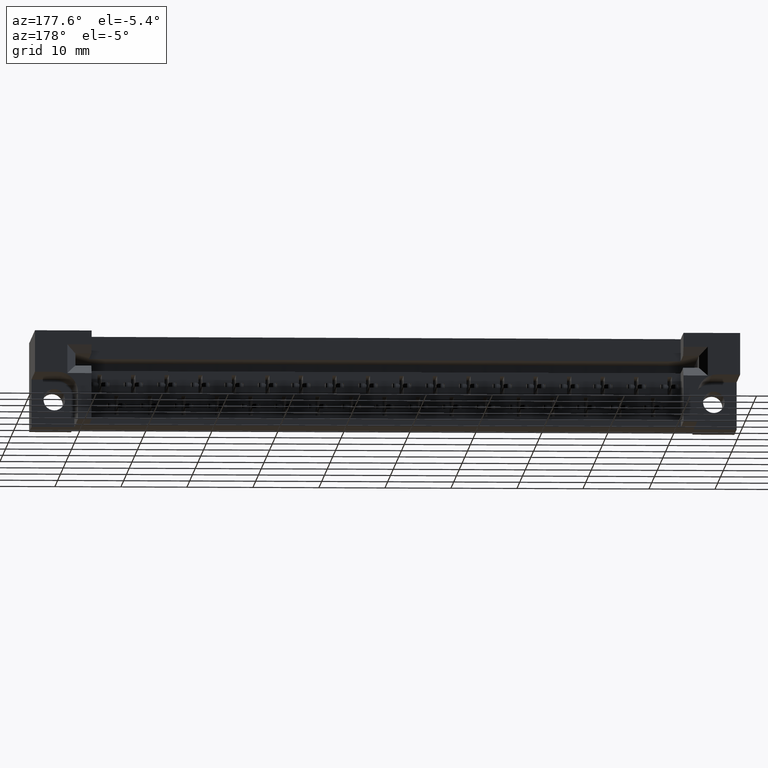
[diagram: clean part render]
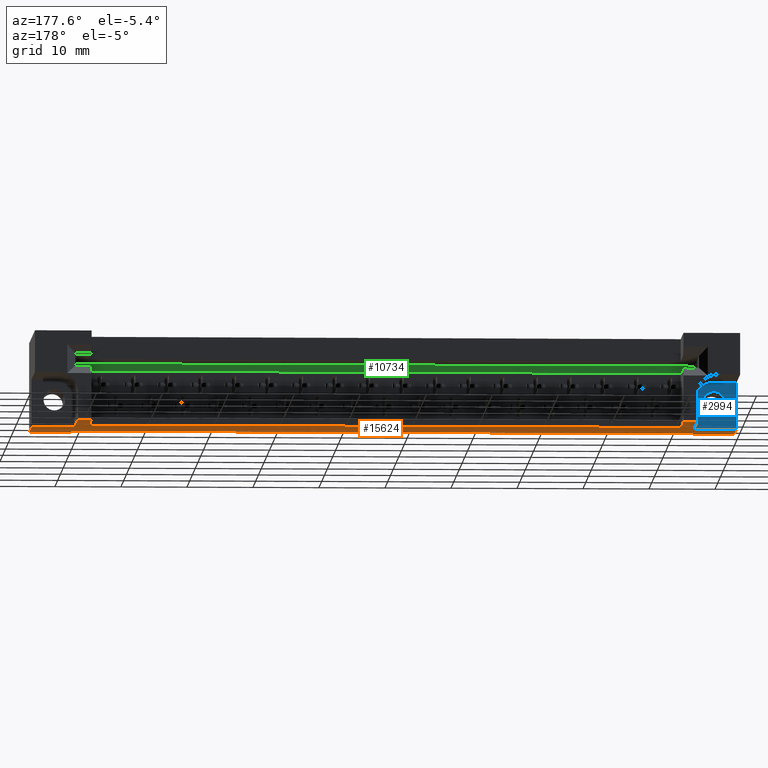
[diagram: same view with three faces highlighted in distinct colors, each labeled with its STEP entity id]
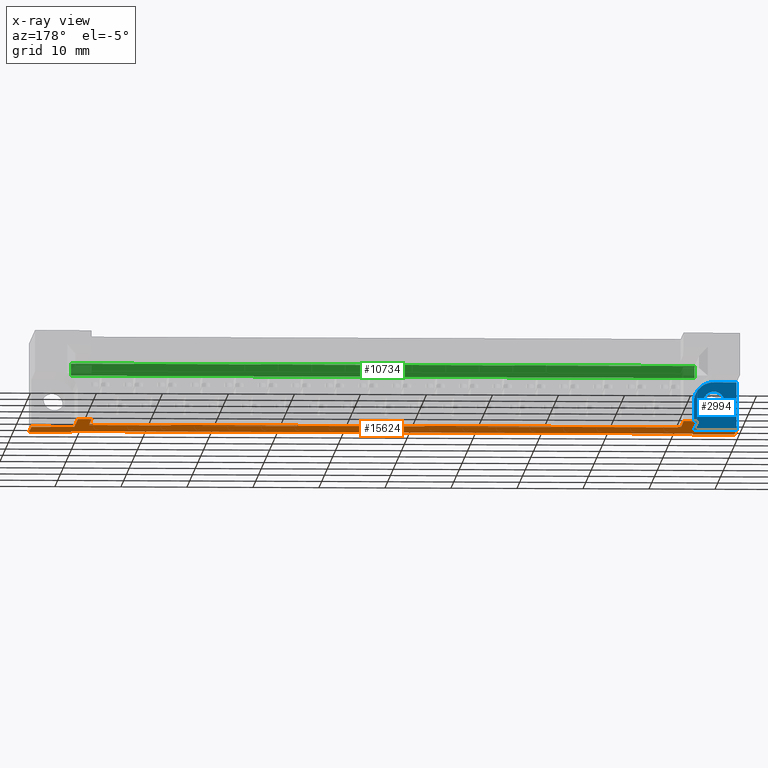
[diagram: x-ray of the same camera — body ghosted, the three highlighted faces saturated]
A machine part, auxiliary view with three faces highlighted in distinct colors.
The next image is the same camera in x-ray (body ghosted, the three faces saturated) — at least one of them is partly hidden behind the body in this view.
Their STEP definitions:

[orange] entity #15624 — the highlighted planar face has unit normal (0, 0, 1).
#139 = VERTEX_POINT ( 'NONE', #17576 ) ;
#171 = LINE ( 'NONE', #16885, #26058 ) ;
#733 = EDGE_LOOP ( 'NONE', ( #14464, #19924, #19066, #19209, #26168, #25056, #2765, #24001, #2417, #25673, #17691, #21832, #8783, #7667, #8417, #4902 ) ) ;
#1029 = CARTESIAN_POINT ( 'NONE',  ( 0.0000000000000000000, 0.0000000000000000000, -0.5310000000000000300 ) ) ;
#1157 = VERTEX_POINT ( 'NONE', #19161 ) ;
#1440 = DIRECTION ( 'NONE',  ( -0.0000000000000000000, 1.000000000000000000, -0.0000000000000000000 ) ) ;
#1476 = LINE ( 'NONE', #3424, #12326 ) ;
#1522 = EDGE_CURVE ( 'NONE', #18778, #24546, #21920, .T. ) ;
#1658 = DIRECTION ( 'NONE',  ( -1.000000000000000000, -0.0000000000000000000, -0.0000000000000000000 ) ) ;
#2145 = EDGE_CURVE ( 'NONE', #21575, #1157, #18753, .T. ) ;
#2294 = CARTESIAN_POINT ( 'NONE',  ( 3.956000000000000800, 0.01700000000000000100, -0.5309999999999999200 ) ) ;
#2417 = ORIENTED_EDGE ( 'NONE', *, *, #1522, .T. ) ;
#2753 = CARTESIAN_POINT ( 'NONE',  ( 0.0000000000000000000, 0.4530000000000000100, -0.5310000000000000300 ) ) ;
#2765 = ORIENTED_EDGE ( 'NONE', *, *, #22793, .F. ) ;
#2990 = DIRECTION ( 'NONE',  ( 0.0000000000000000000, 0.0000000000000000000, 1.000000000000000000 ) ) ;
#3088 = VERTEX_POINT ( 'NONE', #27690 ) ;
#3229 = LINE ( 'NONE', #28083, #26730 ) ;
#3370 = CARTESIAN_POINT ( 'NONE',  ( 3.950000000000000200, 0.3280000000000000100, -0.5310000000000002500 ) ) ;
#3424 = CARTESIAN_POINT ( 'NONE',  ( 4.206000000000000400, 0.4530000000000000100, -0.5310000000000000300 ) ) ;
#3526 = CARTESIAN_POINT ( 'NONE',  ( 3.867999999999999400, 0.8280000000000000700, -0.5310000000000002500 ) ) ;
#3666 = VERTEX_POINT ( 'NONE', #10863 ) ;
#4290 = LINE ( 'NONE', #3370, #28176 ) ;
#4875 = PLANE ( 'NONE',  #19361 ) ;
#4902 = ORIENTED_EDGE ( 'NONE', *, *, #25623, .F. ) ;
#5517 = LINE ( 'NONE', #8488, #13000 ) ;
#5651 = EDGE_CURVE ( 'NONE', #3088, #17822, #4290, .T. ) ;
#6121 = CARTESIAN_POINT ( 'NONE',  ( 0.0000000000000000000, 0.3280000000000000100, -0.5310000000000000300 ) ) ;
#6144 = LINE ( 'NONE', #2753, #12258 ) ;
#6257 = LINE ( 'NONE', #23178, #17880 ) ;
#6412 = DIRECTION ( 'NONE',  ( -0.0000000000000000000, -1.000000000000000000, -0.0000000000000000000 ) ) ;
#6984 = CARTESIAN_POINT ( 'NONE',  ( 0.2499999999999999200, 0.0000000000000000000, -0.5310000000000001400 ) ) ;
#7667 = ORIENTED_EDGE ( 'NONE', *, *, #14624, .T. ) ;
#8038 = VERTEX_POINT ( 'NONE', #12302 ) ;
#8417 = ORIENTED_EDGE ( 'NONE', *, *, #11137, .F. ) ;
#8488 = CARTESIAN_POINT ( 'NONE',  ( 0.0000000000000000000, 0.3280000000000000100, -0.5310000000000000300 ) ) ;
#8699 = EDGE_CURVE ( 'NONE', #15126, #10287, #27364, .T. ) ;
#8774 = VERTEX_POINT ( 'NONE', #17698 ) ;
#8783 = ORIENTED_EDGE ( 'NONE', *, *, #8699, .F. ) ;
#9033 = VECTOR ( 'NONE', #23181, 39.37007874015748100 ) ;
#9174 = VERTEX_POINT ( 'NONE', #26319 ) ;
#9884 = CARTESIAN_POINT ( 'NONE',  ( 0.3380000000000003600, 0.8280000000000000700, -0.5310000000000000300 ) ) ;
#9946 = VERTEX_POINT ( 'NONE', #6121 ) ;
#10287 = VERTEX_POINT ( 'NONE', #23777 ) ;
#10403 = EDGE_CURVE ( 'NONE', #14733, #9946, #5517, .T. ) ;
#10495 = VERTEX_POINT ( 'NONE', #22264 ) ;
#10589 = CARTESIAN_POINT ( 'NONE',  ( 0.3380000000000003600, 0.8280000000000000700, -0.5310000000000000300 ) ) ;
#10863 = CARTESIAN_POINT ( 'NONE',  ( 3.956000000000000800, 0.06200000000000000000, -0.5309999999999999200 ) ) ;
#11137 = EDGE_CURVE ( 'NONE', #8774, #8038, #6144, .T. ) ;
#11591 = VECTOR ( 'NONE', #23992, 39.37007874015748100 ) ;
#12155 = VECTOR ( 'NONE', #6412, 39.37007874015748100 ) ;
#12177 = LINE ( 'NONE', #19474, #15643 ) ;
#12258 = VECTOR ( 'NONE', #26863, 39.37007874015748100 ) ;
#12302 = CARTESIAN_POINT ( 'NONE',  ( 0.3380000000000003600, 0.4530000000000000100, -0.5310000000000000300 ) ) ;
#12326 = VECTOR ( 'NONE', #28246, 39.37007874015748100 ) ;
#12551 = CARTESIAN_POINT ( 'NONE',  ( 0.2499999999999999200, 0.01700000000000000100, -0.5310000000000001400 ) ) ;
#12728 = VECTOR ( 'NONE', #14528, 39.37007874015748100 ) ;
#12883 = DIRECTION ( 'NONE',  ( -1.000000000000000000, -0.0000000000000000000, -2.667820306312757300E-016 ) ) ;
#13000 = VECTOR ( 'NONE', #12883, 39.37007874015748100 ) ;
#13844 = EDGE_CURVE ( 'NONE', #9174, #18778, #19976, .T. ) ;
#14326 = DIRECTION ( 'NONE',  ( -1.000000000000000000, -0.0000000000000000000, -0.0000000000000000000 ) ) ;
#14464 = ORIENTED_EDGE ( 'NONE', *, *, #14486, .F. ) ;
#14486 = EDGE_CURVE ( 'NONE', #17822, #10495, #20298, .T. ) ;
#14528 = DIRECTION ( 'NONE',  ( -1.000000000000000000, -0.0000000000000000000, -6.061792885349676100E-016 ) ) ;
#14591 = DIRECTION ( 'NONE',  ( -0.0000000000000000000, -1.000000000000000000, -0.0000000000000000000 ) ) ;
#14624 = EDGE_CURVE ( 'NONE', #15126, #8038, #171, .T. ) ;
#14626 = DIRECTION ( 'NONE',  ( -0.0000000000000000000, -1.000000000000000000, -0.0000000000000000000 ) ) ;
#14733 = VERTEX_POINT ( 'NONE', #16693 ) ;
#14973 = VECTOR ( 'NONE', #21143, 39.37007874015748100 ) ;
#15126 = VERTEX_POINT ( 'NONE', #9884 ) ;
#15413 = FACE_OUTER_BOUND ( 'NONE', #733, .T. ) ;
#15624 = ADVANCED_FACE ( 'NONE', ( #15413 ), #4875, .F. ) ;
#15643 = VECTOR ( 'NONE', #23793, 39.37007874015748100 ) ;
#15673 = LINE ( 'NONE', #3526, #14973 ) ;
#16106 = DIRECTION ( 'NONE',  ( 1.000000000000000000, 0.0000000000000000000, -0.0000000000000000000 ) ) ;
#16693 = CARTESIAN_POINT ( 'NONE',  ( 0.2560000000000000100, 0.3280000000000000100, -0.5309999999999999200 ) ) ;
#16885 = CARTESIAN_POINT ( 'NONE',  ( 0.3380000000000003600, 0.8280000000000000700, -0.5310000000000000300 ) ) ;
#17074 = CARTESIAN_POINT ( 'NONE',  ( 0.0000000000000000000, 0.0000000000000000000, -0.5310000000000000300 ) ) ;
#17303 = CARTESIAN_POINT ( 'NONE',  ( 4.206000000000000400, 0.0000000000000000000, -0.5310000000000000300 ) ) ;
#17366 = EDGE_CURVE ( 'NONE', #14733, #10287, #12177, .T. ) ;
#17576 = CARTESIAN_POINT ( 'NONE',  ( 4.205999999999999500, 0.3280000000000000100, -0.5310000000000000300 ) ) ;
#17691 = ORIENTED_EDGE ( 'NONE', *, *, #10403, .F. ) ;
#17698 = CARTESIAN_POINT ( 'NONE',  ( 3.867999999999999400, 0.4530000000000000100, -0.5310000000000002500 ) ) ;
#17822 = VERTEX_POINT ( 'NONE', #18977 ) ;
#17880 = VECTOR ( 'NONE', #14591, 39.37007874015748100 ) ;
#18512 = DIRECTION ( 'NONE',  ( -1.000000000000000000, 0.0000000000000000000, -1.067128122525104300E-015 ) ) ;
#18720 = EDGE_CURVE ( 'NONE', #3666, #1157, #26181, .T. ) ;
#18753 = LINE ( 'NONE', #27857, #25953 ) ;
#18778 = VERTEX_POINT ( 'NONE', #6984 ) ;
#18977 = CARTESIAN_POINT ( 'NONE',  ( 3.950000000000000200, 0.8280000000000000700, -0.5310000000000002500 ) ) ;
#19066 = ORIENTED_EDGE ( 'NONE', *, *, #21020, .F. ) ;
#19161 = CARTESIAN_POINT ( 'NONE',  ( 3.956000000000000800, 0.0000000000000000000, -0.5309999999999999200 ) ) ;
#19209 = ORIENTED_EDGE ( 'NONE', *, *, #22998, .T. ) ;
#19361 = AXIS2_PLACEMENT_3D ( 'NONE', #20098, #2990, #16106 ) ;
#19474 = CARTESIAN_POINT ( 'NONE',  ( 0.2560000000000000100, 0.3280000000000000100, -0.5309999999999999200 ) ) ;
#19518 = VECTOR ( 'NONE', #18512, 39.37007874015748100 ) ;
#19924 = ORIENTED_EDGE ( 'NONE', *, *, #5651, .F. ) ;
#19976 = LINE ( 'NONE', #12551, #9033 ) ;
#20098 = CARTESIAN_POINT ( 'NONE',  ( 0.0000000000000000000, 0.4530000000000000100, -0.5310000000000000300 ) ) ;
#20298 = LINE ( 'NONE', #23565, #12728 ) ;
#20380 = EDGE_CURVE ( 'NONE', #9946, #24546, #6257, .T. ) ;
#21020 = EDGE_CURVE ( 'NONE', #139, #3088, #25007, .T. ) ;
#21143 = DIRECTION ( 'NONE',  ( -0.0000000000000000000, -1.000000000000000000, -0.0000000000000000000 ) ) ;
#21575 = VERTEX_POINT ( 'NONE', #17303 ) ;
#21832 = ORIENTED_EDGE ( 'NONE', *, *, #17366, .T. ) ;
#21920 = LINE ( 'NONE', #1029, #22946 ) ;
#22264 = CARTESIAN_POINT ( 'NONE',  ( 3.867999999999999400, 0.8280000000000000700, -0.5310000000000002500 ) ) ;
#22555 = CARTESIAN_POINT ( 'NONE',  ( 4.205999999999999500, 0.3280000000000000100, -0.5310000000000000300 ) ) ;
#22793 = EDGE_CURVE ( 'NONE', #9174, #3666, #3229, .T. ) ;
#22946 = VECTOR ( 'NONE', #14326, 39.37007874015748100 ) ;
#22998 = EDGE_CURVE ( 'NONE', #139, #21575, #1476, .T. ) ;
#23178 = CARTESIAN_POINT ( 'NONE',  ( 0.0000000000000000000, 0.4530000000000000100, -0.5310000000000000300 ) ) ;
#23181 = DIRECTION ( 'NONE',  ( -0.0000000000000000000, -1.000000000000000000, -0.0000000000000000000 ) ) ;
#23565 = CARTESIAN_POINT ( 'NONE',  ( 3.867999999999999400, 0.8280000000000000700, -0.5310000000000002500 ) ) ;
#23777 = CARTESIAN_POINT ( 'NONE',  ( 0.2560000000000000100, 0.8280000000000000700, -0.5309999999999999200 ) ) ;
#23793 = DIRECTION ( 'NONE',  ( -0.0000000000000000000, 1.000000000000000000, -0.0000000000000000000 ) ) ;
#23992 = DIRECTION ( 'NONE',  ( -1.000000000000000000, 0.0000000000000000000, 0.0000000000000000000 ) ) ;
#24001 = ORIENTED_EDGE ( 'NONE', *, *, #13844, .T. ) ;
#24546 = VERTEX_POINT ( 'NONE', #17074 ) ;
#25007 = LINE ( 'NONE', #22555, #19518 ) ;
#25056 = ORIENTED_EDGE ( 'NONE', *, *, #18720, .F. ) ;
#25623 = EDGE_CURVE ( 'NONE', #10495, #8774, #15673, .T. ) ;
#25673 = ORIENTED_EDGE ( 'NONE', *, *, #20380, .F. ) ;
#25953 = VECTOR ( 'NONE', #1658, 39.37007874015748100 ) ;
#26058 = VECTOR ( 'NONE', #14626, 39.37007874015748100 ) ;
#26168 = ORIENTED_EDGE ( 'NONE', *, *, #2145, .T. ) ;
#26181 = LINE ( 'NONE', #2294, #12155 ) ;
#26262 = DIRECTION ( 'NONE',  ( 1.000000000000000000, 0.0000000000000000000, 1.842854825731423800E-017 ) ) ;
#26319 = CARTESIAN_POINT ( 'NONE',  ( 0.2499999999999999200, 0.06200000000000000000, -0.5310000000000000300 ) ) ;
#26730 = VECTOR ( 'NONE', #26262, 39.37007874015748100 ) ;
#26863 = DIRECTION ( 'NONE',  ( -1.000000000000000000, -0.0000000000000000000, -0.0000000000000000000 ) ) ;
#27364 = LINE ( 'NONE', #10589, #11591 ) ;
#27690 = CARTESIAN_POINT ( 'NONE',  ( 3.950000000000000200, 0.3280000000000000100, -0.5310000000000002500 ) ) ;
#27857 = CARTESIAN_POINT ( 'NONE',  ( 0.0000000000000000000, 0.0000000000000000000, -0.5310000000000000300 ) ) ;
#28083 = CARTESIAN_POINT ( 'NONE',  ( 9.785559124633859800E-018, 0.06200000000000000000, -0.5310000000000000300 ) ) ;
#28176 = VECTOR ( 'NONE', #1440, 39.37007874015748100 ) ;
#28246 = DIRECTION ( 'NONE',  ( -0.0000000000000000000, -1.000000000000000000, -0.0000000000000000000 ) ) ;

[blue] entity #2994 — the highlighted planar face has unit normal (0, -1, 0).
#587 = VECTOR ( 'NONE', #20119, 39.37007874015748100 ) ;
#758 = FACE_BOUND ( 'NONE', #3709, .T. ) ;
#1120 = ORIENTED_EDGE ( 'NONE', *, *, #14384, .T. ) ;
#1590 = VERTEX_POINT ( 'NONE', #25383 ) ;
#1834 = EDGE_CURVE ( 'NONE', #9946, #1590, #24268, .T. ) ;
#1946 = CARTESIAN_POINT ( 'NONE',  ( 0.1360000000000000100, 0.3280000000000000100, -0.3679999999999999900 ) ) ;
#2279 = ORIENTED_EDGE ( 'NONE', *, *, #10403, .T. ) ;
#2994 = ADVANCED_FACE ( 'NONE', ( #5815, #758 ), #24844, .F. ) ;
#3709 = EDGE_LOOP ( 'NONE', ( #27988, #16324 ) ) ;
#5517 = LINE ( 'NONE', #8488, #13000 ) ;
#5748 = DIRECTION ( 'NONE',  ( -2.094975455264006000E-016, -0.0000000000000000000, -1.000000000000000000 ) ) ;
#5815 = FACE_OUTER_BOUND ( 'NONE', #15784, .T. ) ;
#6121 = CARTESIAN_POINT ( 'NONE',  ( 0.0000000000000000000, 0.3280000000000000100, -0.5310000000000000300 ) ) ;
#7139 = VERTEX_POINT ( 'NONE', #10979 ) ;
#7345 = CARTESIAN_POINT ( 'NONE',  ( 0.0000000000000000000, 0.3280000000000000100, -0.5310000000000000300 ) ) ;
#7570 = DIRECTION ( 'NONE',  ( 0.0000000000000000000, -0.0000000000000000000, -1.000000000000000000 ) ) ;
#7890 = CIRCLE ( 'NONE', #24235, 0.06399999999999998700 ) ;
#8488 = CARTESIAN_POINT ( 'NONE',  ( 0.0000000000000000000, 0.3280000000000000100, -0.5310000000000000300 ) ) ;
#9333 = VECTOR ( 'NONE', #5748, 39.37007874015748100 ) ;
#9409 = AXIS2_PLACEMENT_3D ( 'NONE', #27051, #25216, #7570 ) ;
#9946 = VERTEX_POINT ( 'NONE', #6121 ) ;
#10245 = CIRCLE ( 'NONE', #28213, 0.06399999999999998700 ) ;
#10273 = CARTESIAN_POINT ( 'NONE',  ( 0.2560000000000000100, 0.3280000000000000100, -0.5309999999999999200 ) ) ;
#10403 = EDGE_CURVE ( 'NONE', #14733, #9946, #5517, .T. ) ;
#10486 = EDGE_CURVE ( 'NONE', #17263, #27247, #10245, .T. ) ;
#10979 = CARTESIAN_POINT ( 'NONE',  ( 0.2560000000000000100, 0.3280000000000000100, -0.3679999999999999900 ) ) ;
#11230 = ORIENTED_EDGE ( 'NONE', *, *, #13621, .T. ) ;
#11314 = CARTESIAN_POINT ( 'NONE',  ( 3.432516437283340900E-017, 0.3280000000000000100, -0.2480000000000000000 ) ) ;
#12174 = CARTESIAN_POINT ( 'NONE',  ( 0.1360000000000000100, 0.3280000000000000100, -0.4320000000000000000 ) ) ;
#12633 = DIRECTION ( 'NONE',  ( 0.0000000000000000000, 0.0000000000000000000, -1.000000000000000000 ) ) ;
#12883 = DIRECTION ( 'NONE',  ( -1.000000000000000000, -0.0000000000000000000, -2.667820306312757300E-016 ) ) ;
#13000 = VECTOR ( 'NONE', #12883, 39.37007874015748100 ) ;
#13621 = EDGE_CURVE ( 'NONE', #1590, #21524, #24784, .T. ) ;
#13662 = DIRECTION ( 'NONE',  ( 0.0000000000000000000, 1.000000000000000000, -0.0000000000000000000 ) ) ;
#14384 = EDGE_CURVE ( 'NONE', #7139, #14733, #18242, .T. ) ;
#14733 = VERTEX_POINT ( 'NONE', #16693 ) ;
#15734 = ORIENTED_EDGE ( 'NONE', *, *, #26985, .T. ) ;
#15784 = EDGE_LOOP ( 'NONE', ( #22063, #11230, #15734, #1120, #2279 ) ) ;
#16016 = CARTESIAN_POINT ( 'NONE',  ( 0.1360000000000000100, 0.3280000000000000100, -0.3040000000000000500 ) ) ;
#16324 = ORIENTED_EDGE ( 'NONE', *, *, #21147, .F. ) ;
#16453 = AXIS2_PLACEMENT_3D ( 'NONE', #1946, #21640, #26014 ) ;
#16693 = CARTESIAN_POINT ( 'NONE',  ( 0.2560000000000000100, 0.3280000000000000100, -0.5309999999999999200 ) ) ;
#16726 = CARTESIAN_POINT ( 'NONE',  ( 0.1360000000000000400, 0.3280000000000000100, -0.2480000000000000300 ) ) ;
#17263 = VERTEX_POINT ( 'NONE', #12174 ) ;
#18242 = LINE ( 'NONE', #10273, #9333 ) ;
#18413 = DIRECTION ( 'NONE',  ( 1.212903334729095600E-016, 0.0000000000000000000, 1.000000000000000000 ) ) ;
#20119 = DIRECTION ( 'NONE',  ( 1.000000000000000000, 0.0000000000000000000, -2.510889700059065900E-016 ) ) ;
#21147 = EDGE_CURVE ( 'NONE', #27247, #17263, #7890, .T. ) ;
#21524 = VERTEX_POINT ( 'NONE', #16726 ) ;
#21640 = DIRECTION ( 'NONE',  ( 0.0000000000000000000, 1.000000000000000000, -0.0000000000000000000 ) ) ;
#22063 = ORIENTED_EDGE ( 'NONE', *, *, #1834, .T. ) ;
#22174 = DIRECTION ( 'NONE',  ( 0.0000000000000000000, 0.0000000000000000000, -1.000000000000000000 ) ) ;
#23079 = CIRCLE ( 'NONE', #16453, 0.1199999999999999500 ) ;
#23617 = CARTESIAN_POINT ( 'NONE',  ( 0.1360000000000000100, 0.3280000000000000100, -0.3679999999999999900 ) ) ;
#23922 = VECTOR ( 'NONE', #18413, 39.37007874015748100 ) ;
#24235 = AXIS2_PLACEMENT_3D ( 'NONE', #23617, #28226, #12633 ) ;
#24268 = LINE ( 'NONE', #7345, #23922 ) ;
#24545 = CARTESIAN_POINT ( 'NONE',  ( 0.1360000000000000100, 0.3280000000000000100, -0.3679999999999999900 ) ) ;
#24784 = LINE ( 'NONE', #11314, #587 ) ;
#24844 = PLANE ( 'NONE',  #9409 ) ;
#25216 = DIRECTION ( 'NONE',  ( 0.0000000000000000000, -1.000000000000000000, 0.0000000000000000000 ) ) ;
#25383 = CARTESIAN_POINT ( 'NONE',  ( 3.432516437283340900E-017, 0.3280000000000000100, -0.2480000000000000000 ) ) ;
#26014 = DIRECTION ( 'NONE',  ( 0.0000000000000000000, 0.0000000000000000000, -1.000000000000000000 ) ) ;
#26985 = EDGE_CURVE ( 'NONE', #21524, #7139, #23079, .T. ) ;
#27051 = CARTESIAN_POINT ( 'NONE',  ( 0.1360000000000000100, 0.3280000000000000100, -0.3679999999999999900 ) ) ;
#27247 = VERTEX_POINT ( 'NONE', #16016 ) ;
#27988 = ORIENTED_EDGE ( 'NONE', *, *, #10486, .F. ) ;
#28213 = AXIS2_PLACEMENT_3D ( 'NONE', #24545, #13662, #22174 ) ;
#28226 = DIRECTION ( 'NONE',  ( 0.0000000000000000000, 1.000000000000000000, -0.0000000000000000000 ) ) ;

[green] entity #10734 — the highlighted planar face has unit normal (0, -1, 0).
#331 = ORIENTED_EDGE ( 'NONE', *, *, #11105, .T. ) ;
#624 = VERTEX_POINT ( 'NONE', #21555 ) ;
#1158 = VECTOR ( 'NONE', #27614, 39.37007874015748100 ) ;
#1533 = EDGE_CURVE ( 'NONE', #10376, #624, #10577, .T. ) ;
#3733 = PLANE ( 'NONE',  #13778 ) ;
#4006 = CARTESIAN_POINT ( 'NONE',  ( 3.963000000000000500, 0.1280000000000001100, -0.2049999999999999900 ) ) ;
#4770 = LINE ( 'NONE', #23505, #20795 ) ;
#4804 = CARTESIAN_POINT ( 'NONE',  ( 3.963000000000000500, 0.1280000000000001100, -0.2049999999999999900 ) ) ;
#6153 = DIRECTION ( 'NONE',  ( 0.0000000000000000000, -0.0000000000000000000, -1.000000000000000000 ) ) ;
#7162 = LINE ( 'NONE', #20477, #21164 ) ;
#8934 = LINE ( 'NONE', #10200, #1158 ) ;
#9593 = EDGE_LOOP ( 'NONE', ( #22862, #24228, #18215, #331 ) ) ;
#9719 = DIRECTION ( 'NONE',  ( -0.0000000000000000000, -0.0000000000000000000, 1.000000000000000000 ) ) ;
#10200 = CARTESIAN_POINT ( 'NONE',  ( 0.2430000000000000200, 0.1280000000000001100, -0.2049999999999999900 ) ) ;
#10376 = VERTEX_POINT ( 'NONE', #24066 ) ;
#10577 = LINE ( 'NONE', #22831, #14740 ) ;
#10734 = ADVANCED_FACE ( 'NONE', ( #26679 ), #3733, .F. ) ;
#11049 = CARTESIAN_POINT ( 'NONE',  ( 3.963000000000000500, 0.1280000000000001100, -0.1330000000000000100 ) ) ;
#11105 = EDGE_CURVE ( 'NONE', #624, #24059, #7162, .T. ) ;
#11732 = EDGE_CURVE ( 'NONE', #24059, #13608, #4770, .T. ) ;
#13608 = VERTEX_POINT ( 'NONE', #4804 ) ;
#13778 = AXIS2_PLACEMENT_3D ( 'NONE', #4006, #19296, #6153 ) ;
#14551 = DIRECTION ( 'NONE',  ( 1.000000000000000000, 0.0000000000000000000, 0.0000000000000000000 ) ) ;
#14740 = VECTOR ( 'NONE', #9719, 39.37007874015748100 ) ;
#18215 = ORIENTED_EDGE ( 'NONE', *, *, #1533, .T. ) ;
#18893 = DIRECTION ( 'NONE',  ( 0.0000000000000000000, 0.0000000000000000000, -1.000000000000000000 ) ) ;
#19296 = DIRECTION ( 'NONE',  ( 0.0000000000000000000, -1.000000000000000000, 0.0000000000000000000 ) ) ;
#20477 = CARTESIAN_POINT ( 'NONE',  ( 0.2430000000000000200, 0.1280000000000001100, -0.1330000000000000100 ) ) ;
#20795 = VECTOR ( 'NONE', #18893, 39.37007874015748100 ) ;
#21164 = VECTOR ( 'NONE', #14551, 39.37007874015748100 ) ;
#21555 = CARTESIAN_POINT ( 'NONE',  ( 0.2430000000000000200, 0.1280000000000001100, -0.1330000000000000100 ) ) ;
#22618 = EDGE_CURVE ( 'NONE', #13608, #10376, #8934, .T. ) ;
#22831 = CARTESIAN_POINT ( 'NONE',  ( 0.2430000000000000200, 0.1280000000000001100, -0.1330000000000000100 ) ) ;
#22862 = ORIENTED_EDGE ( 'NONE', *, *, #11732, .T. ) ;
#23505 = CARTESIAN_POINT ( 'NONE',  ( 3.963000000000000500, 0.1280000000000001100, -0.1330000000000000100 ) ) ;
#24059 = VERTEX_POINT ( 'NONE', #11049 ) ;
#24066 = CARTESIAN_POINT ( 'NONE',  ( 0.2430000000000000200, 0.1280000000000001100, -0.2049999999999999900 ) ) ;
#24228 = ORIENTED_EDGE ( 'NONE', *, *, #22618, .T. ) ;
#26679 = FACE_OUTER_BOUND ( 'NONE', #9593, .T. ) ;
#27614 = DIRECTION ( 'NONE',  ( -1.000000000000000000, -0.0000000000000000000, -0.0000000000000000000 ) ) ;